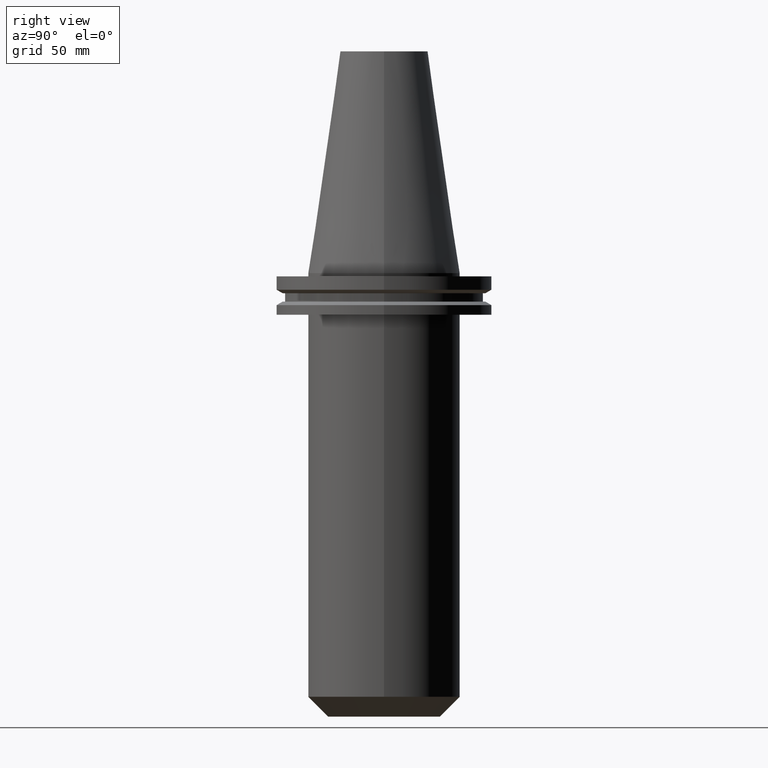
[diagram: clean part render]
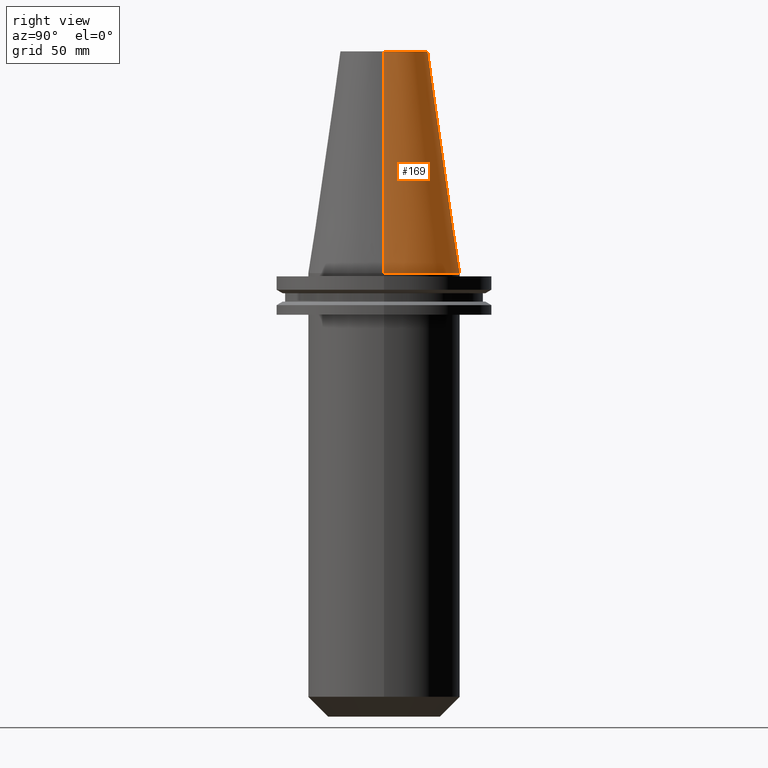
[diagram: same view with one face highlighted and labeled with its STEP entity id]
A machine part, right view. The second image highlights one B-rep face of the part: STEP entity #169.
In plain terms, the highlighted conical surface has half-angle 8.297 deg.
Its self-contained STEP definition (entity closure, byte-faithful):
#5 = EDGE_CURVE ( 'NONE', #52, #735, #482, .T. ) ;
#24 = EDGE_LOOP ( 'NONE', ( #470, #209, #439, #630 ) ) ;
#36 = FACE_OUTER_BOUND ( 'NONE', #24, .T. ) ;
#52 = VERTEX_POINT ( 'NONE', #312 ) ;
#119 = CARTESIAN_POINT ( 'NONE',  ( -34.92499999999999005, 0.000000000000000000, 0.000000000000000000 ) ) ;
#140 = AXIS2_PLACEMENT_3D ( 'NONE', #377, #386, #193 ) ;
#162 = CARTESIAN_POINT ( 'NONE',  ( -34.92499999999999005, 0.000000000000000000, 0.000000000000000000 ) ) ;
#169 = ADVANCED_FACE ( 'NONE', ( #36 ), #411, .T. ) ;
#193 = DIRECTION ( 'NONE',  ( 1.000000000000000000, 0.000000000000000000, 0.000000000000000000 ) ) ;
#200 = VERTEX_POINT ( 'NONE', #701 ) ;
#209 = ORIENTED_EDGE ( 'NONE', *, *, #702, .T. ) ;
#287 = DIRECTION ( 'NONE',  ( 0.000000000000000000, 0.000000000000000000, -1.000000000000000000 ) ) ;
#312 = CARTESIAN_POINT ( 'NONE',  ( 34.92499999999999005, 4.277078946022130098E-15, 0.000000000000000000 ) ) ;
#354 = CARTESIAN_POINT ( 'NONE',  ( -20.10819343178871321, 0.000000000000000000, 101.5999999999999801 ) ) ;
#372 = LINE ( 'NONE', #609, #610 ) ;
#377 = CARTESIAN_POINT ( 'NONE',  ( 0.000000000000000000, 0.000000000000000000, 101.5999999999999801 ) ) ;
#386 = DIRECTION ( 'NONE',  ( -0.000000000000000000, -0.000000000000000000, 1.000000000000000000 ) ) ;
#399 = DIRECTION ( 'NONE',  ( -0.1443082272672999988, 0.000000000000000000, -0.9895327864921755756 ) ) ;
#407 = DIRECTION ( 'NONE',  ( -1.000000000000000000, 0.000000000000000000, 0.000000000000000000 ) ) ;
#411 = CONICAL_SURFACE ( 'NONE', #684, 34.92499999999999005, 0.1448138465474119452 ) ;
#418 = EDGE_CURVE ( 'NONE', #200, #507, #487, .T. ) ;
#439 = ORIENTED_EDGE ( 'NONE', *, *, #5, .T. ) ;
#466 = CARTESIAN_POINT ( 'NONE',  ( 0.000000000000000000, 0.000000000000000000, 0.000000000000000000 ) ) ;
#470 = ORIENTED_EDGE ( 'NONE', *, *, #418, .F. ) ;
#482 = CIRCLE ( 'NONE', #615, 34.92499999999999005 ) ;
#487 = CIRCLE ( 'NONE', #140, 20.10819343178871321 ) ;
#499 = VECTOR ( 'NONE', #399, 999.9999999999998863 ) ;
#507 = VERTEX_POINT ( 'NONE', #354 ) ;
#544 = DIRECTION ( 'NONE',  ( 0.1443082272672999988, 1.767266086135277066E-17, -0.9895327864921755756 ) ) ;
#590 = EDGE_CURVE ( 'NONE', #507, #735, #749, .T. ) ;
#595 = DIRECTION ( 'NONE',  ( 1.000000000000000000, 0.000000000000000000, 0.000000000000000000 ) ) ;
#609 = CARTESIAN_POINT ( 'NONE',  ( 34.92499999999999005, 4.277078946022130098E-15, 0.000000000000000000 ) ) ;
#610 = VECTOR ( 'NONE', #544, 999.9999999999998863 ) ;
#615 = AXIS2_PLACEMENT_3D ( 'NONE', #466, #700, #595 ) ;
#630 = ORIENTED_EDGE ( 'NONE', *, *, #590, .F. ) ;
#641 = CARTESIAN_POINT ( 'NONE',  ( 0.000000000000000000, 0.000000000000000000, 0.000000000000000000 ) ) ;
#684 = AXIS2_PLACEMENT_3D ( 'NONE', #641, #287, #407 ) ;
#700 = DIRECTION ( 'NONE',  ( -0.000000000000000000, -0.000000000000000000, 1.000000000000000000 ) ) ;
#701 = CARTESIAN_POINT ( 'NONE',  ( 20.10819343178871321, 3.369811209154858606E-15, 101.5999999999999801 ) ) ;
#702 = EDGE_CURVE ( 'NONE', #200, #52, #372, .T. ) ;
#735 = VERTEX_POINT ( 'NONE', #119 ) ;
#749 = LINE ( 'NONE', #162, #499 ) ;